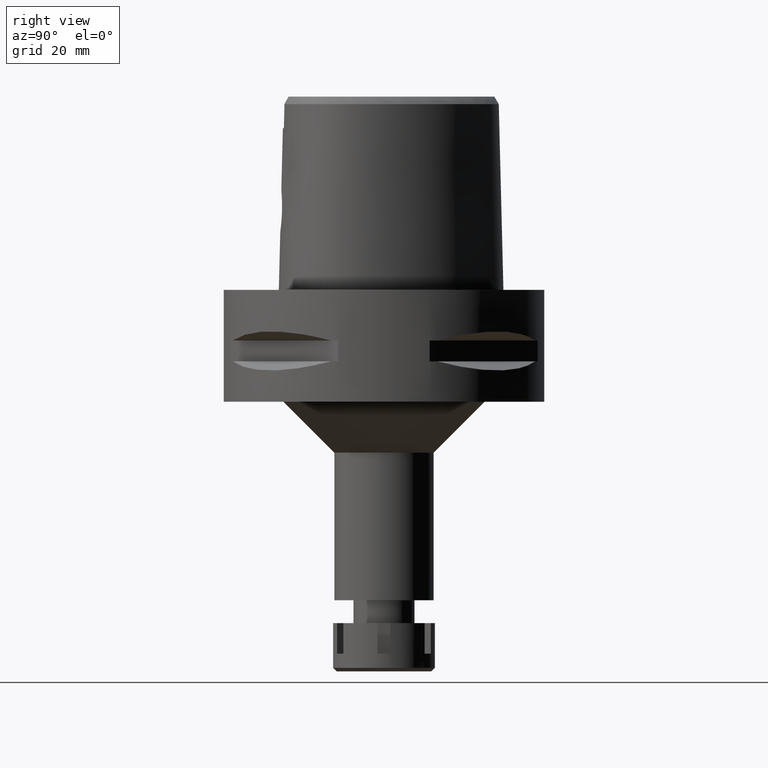
[diagram: clean part render]
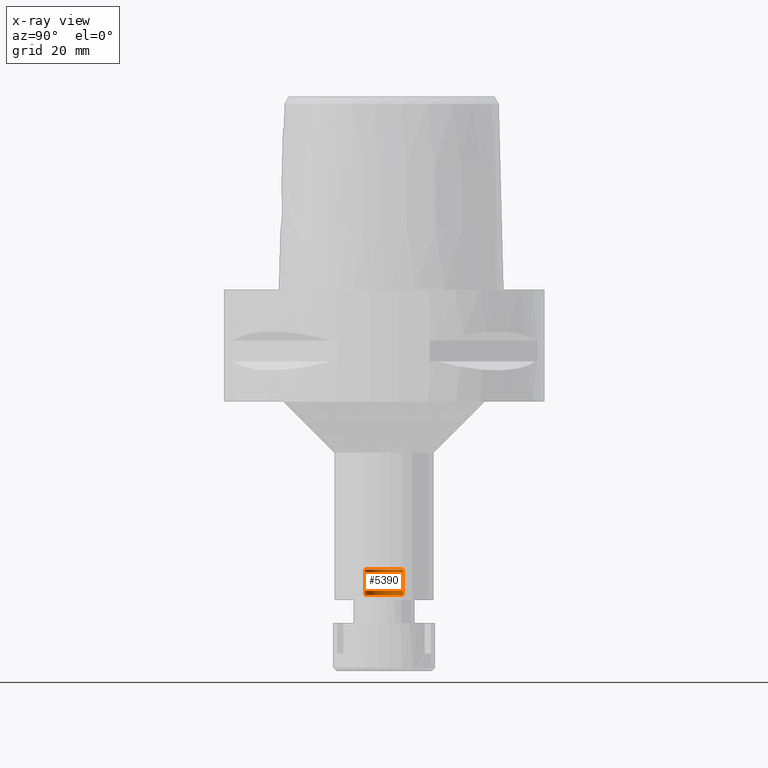
[diagram: x-ray — body ghosted, one internal face saturated and labeled with its STEP entity id]
A machine part, right view, then the same camera in x-ray: the body is ghosted and one INTERNAL B-rep face — a face not visible from any outside direction — is saturated and labeled: STEP entity #5390.
In plain terms, the highlighted cylindrical surface (edge-blend (fillet) strip) has radius 3.75 mm, axis along (0, 0, -1).
Its self-contained STEP definition (entity closure, byte-faithful):
#266 = LINE ( 'NONE', #1988, #464 ) ;
#376 = AXIS2_PLACEMENT_3D ( 'NONE', #3022, #3406, #864 ) ;
#464 = VECTOR ( 'NONE', #731, 1000.000000000000000 ) ;
#561 = EDGE_CURVE ( 'NONE', #4806, #2296, #823, .T. ) ;
#731 = DIRECTION ( 'NONE',  ( 0.0000000000000000000, 0.0000000000000000000, 1.000000000000000000 ) ) ;
#823 = LINE ( 'NONE', #4297, #1289 ) ;
#864 = DIRECTION ( 'NONE',  ( 0.0000000000000000000, -1.000000000000000000, 0.0000000000000000000 ) ) ;
#981 = CARTESIAN_POINT ( 'NONE',  ( 0.0000000000000000000, 1.267509437118000086E-14, -55.00000000000000000 ) ) ;
#1043 = CARTESIAN_POINT ( 'NONE',  ( 0.0000000000000000000, -3.750000000000000000, -60.00000000000000000 ) ) ;
#1289 = VECTOR ( 'NONE', #3390, 1000.000000000000000 ) ;
#1667 = ORIENTED_EDGE ( 'NONE', *, *, #4999, .T. ) ;
#1678 = ORIENTED_EDGE ( 'NONE', *, *, #4656, .T. ) ;
#1706 = AXIS2_PLACEMENT_3D ( 'NONE', #981, #2362, #1831 ) ;
#1831 = DIRECTION ( 'NONE',  ( 0.0000000000000000000, 1.000000000000000000, 0.0000000000000000000 ) ) ;
#1868 = CARTESIAN_POINT ( 'NONE',  ( 0.0000000000000000000, 3.750000000000000000, -55.00000000000000000 ) ) ;
#1976 = CIRCLE ( 'NONE', #1706, 3.750000000000000000 ) ;
#1988 = CARTESIAN_POINT ( 'NONE',  ( 0.0000000000000000000, 3.750000000000000000, -60.00000000000000000 ) ) ;
#2176 = FACE_OUTER_BOUND ( 'NONE', #3136, .T. ) ;
#2296 = VERTEX_POINT ( 'NONE', #4876 ) ;
#2362 = DIRECTION ( 'NONE',  ( 0.0000000000000000000, 0.0000000000000000000, 1.000000000000000000 ) ) ;
#2467 = DIRECTION ( 'NONE',  ( 0.0000000000000000000, 0.0000000000000000000, -1.000000000000000000 ) ) ;
#3022 = CARTESIAN_POINT ( 'NONE',  ( 0.0000000000000000000, 1.267509437118000086E-14, 3.500000000000000000 ) ) ;
#3136 = EDGE_LOOP ( 'NONE', ( #1678, #3234, #1667, #5032 ) ) ;
#3234 = ORIENTED_EDGE ( 'NONE', *, *, #561, .F. ) ;
#3340 = CARTESIAN_POINT ( 'NONE',  ( 0.0000000000000000000, 1.267509437118000086E-14, -60.00000000000000000 ) ) ;
#3390 = DIRECTION ( 'NONE',  ( 0.0000000000000000000, 0.0000000000000000000, 1.000000000000000000 ) ) ;
#3406 = DIRECTION ( 'NONE',  ( 0.0000000000000000000, 0.0000000000000000000, -1.000000000000000000 ) ) ;
#4179 = VERTEX_POINT ( 'NONE', #1868 ) ;
#4297 = CARTESIAN_POINT ( 'NONE',  ( 0.0000000000000000000, -3.750000000000000000, -60.00000000000000000 ) ) ;
#4656 = EDGE_CURVE ( 'NONE', #4179, #2296, #1976, .T. ) ;
#4806 = VERTEX_POINT ( 'NONE', #1043 ) ;
#4876 = CARTESIAN_POINT ( 'NONE',  ( 0.0000000000000000000, -3.750000000000000000, -55.00000000000000000 ) ) ;
#4882 = CIRCLE ( 'NONE', #5138, 3.750000000000000000 ) ;
#4944 = CARTESIAN_POINT ( 'NONE',  ( 0.0000000000000000000, 3.750000000000000000, -60.00000000000000000 ) ) ;
#4975 = VERTEX_POINT ( 'NONE', #4944 ) ;
#4999 = EDGE_CURVE ( 'NONE', #4806, #4975, #4882, .T. ) ;
#5015 = CYLINDRICAL_SURFACE ( 'NONE', #376, 3.750000000000000000 ) ;
#5032 = ORIENTED_EDGE ( 'NONE', *, *, #5330, .T. ) ;
#5138 = AXIS2_PLACEMENT_3D ( 'NONE', #3340, #2467, #5360 ) ;
#5330 = EDGE_CURVE ( 'NONE', #4975, #4179, #266, .T. ) ;
#5360 = DIRECTION ( 'NONE',  ( 0.0000000000000000000, -1.000000000000000000, 0.0000000000000000000 ) ) ;
#5390 = ADVANCED_FACE ( 'NONE', ( #2176 ), #5015, .F. ) ;